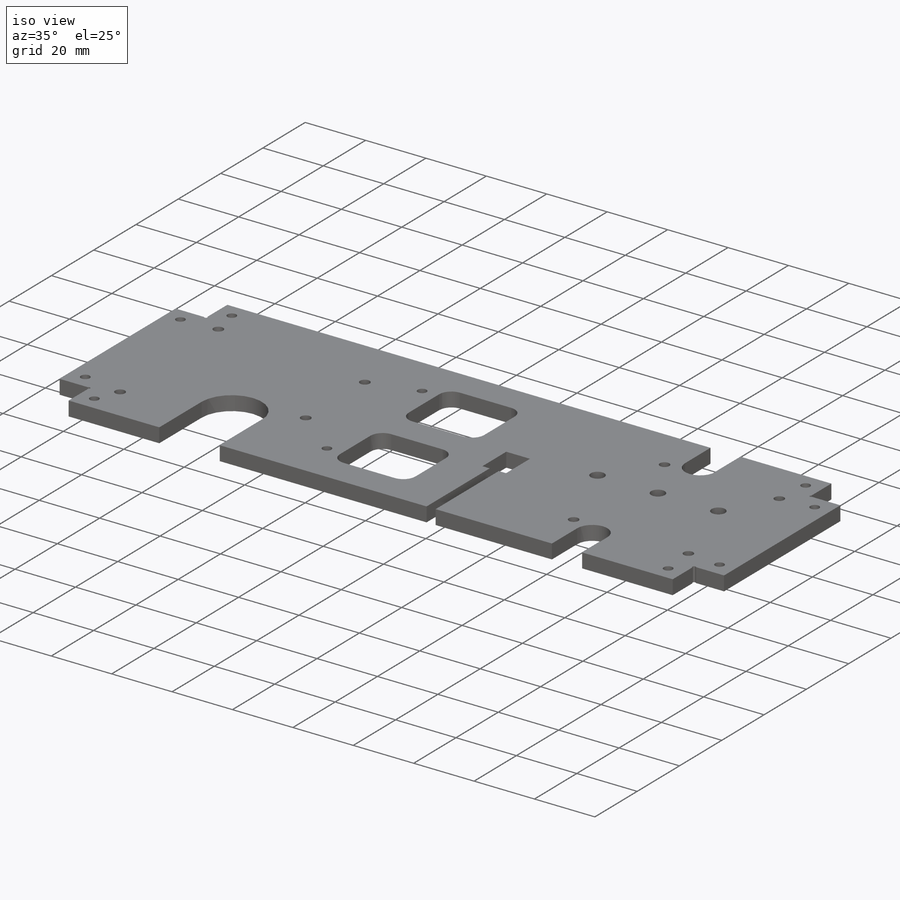
[diagram: iso view]
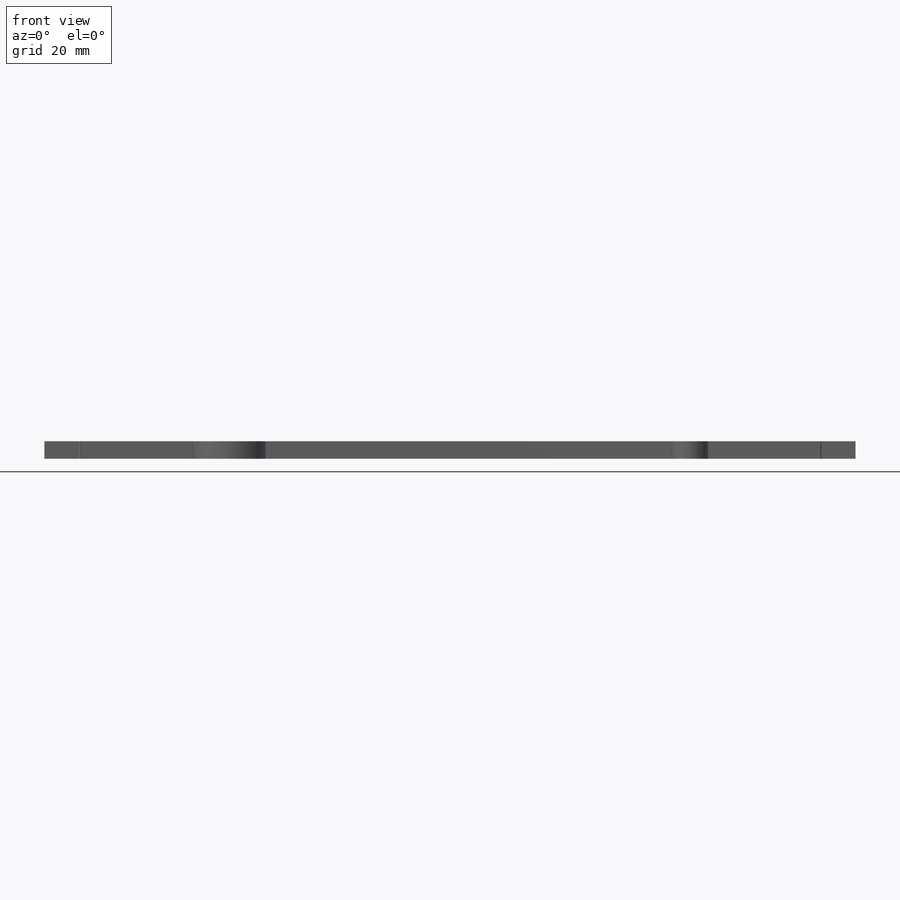
[diagram: front view]
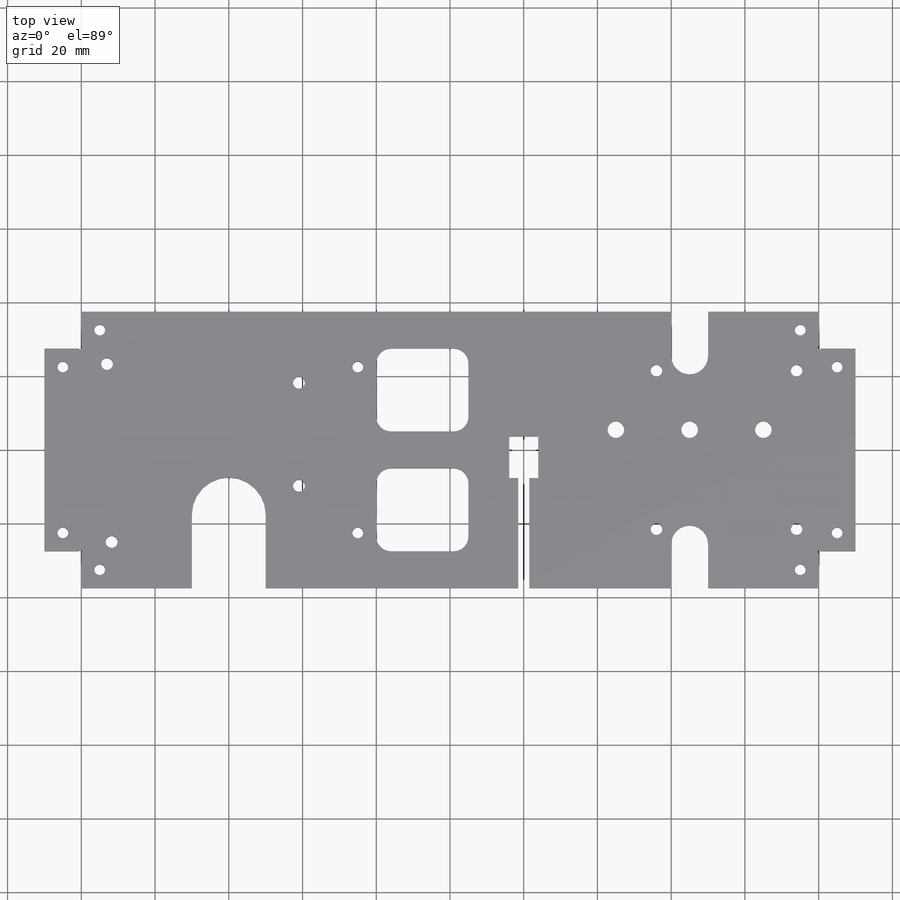
[diagram: top view]
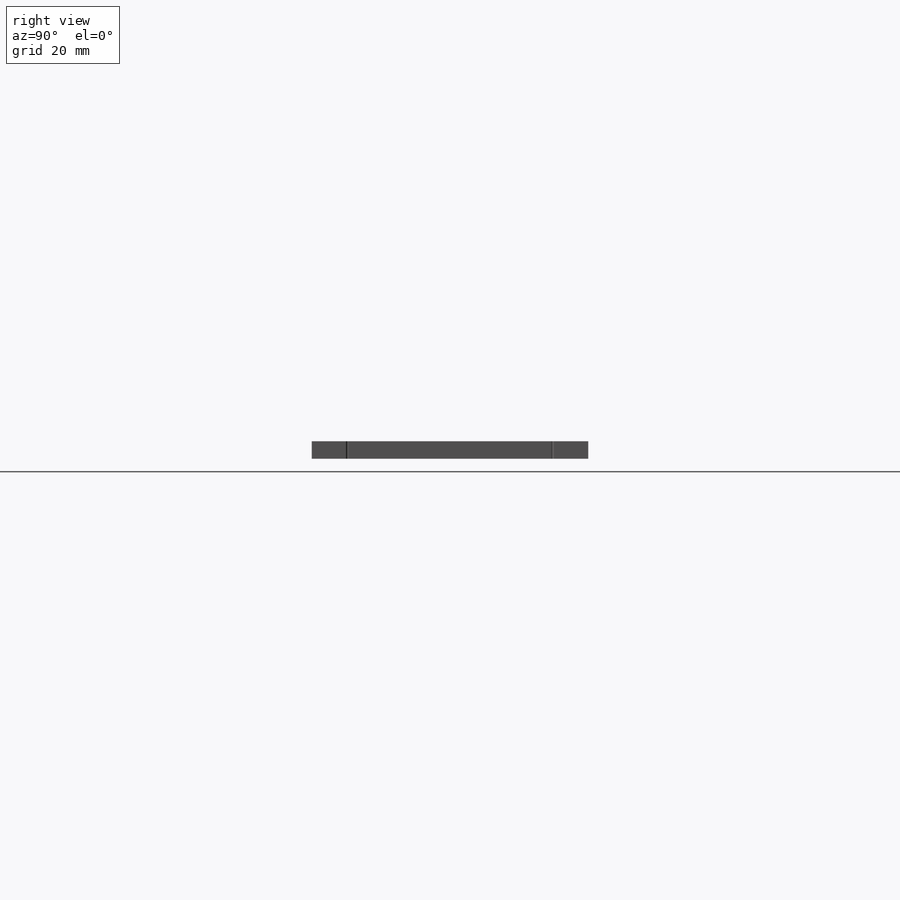
[diagram: right view]
SOLIDWORKS PART (.sldprt)
format: sldprt  version: not decoded by parser v0  size: 347,136 bytes
history: native  units: mm
features: sketch x3, cut_extrude x2, material x1, extrude x1, fillet x1 (+16 scaffold rows collapsed)
feature tree (24):
  scaffold x16  (default folders/planes/origin — collapsed)
  material  "Material <not specified>"
  sketch  "Sketch1"  dims[D4=2.9mm D1=37.5mm D2=110.0mm D3=10.0mm D5=32.5mm D6=22.5mm D7=95.0mm D8=105.0mm]
  extrude  "Boss-Extrude1"  Depth=4.7625mm
  sketch  "Sketch2"  dims[D10=3.2mm D17=4.5mm D25=3.125mm D1=7.85mm D2=11.3mm D3=20.0mm D4=85.0mm D5=3.0mm D6=53.34mm D7=10.0mm D8=15.24mm D9=50.8mm D11=2.54mm D12=13.97mm D13=7.62mm D14=27.94mm D15=50.8mm D16=43.0mm D18=20.0mm D19=65.0mm D20=2.0mm D21=10.0mm D22=12.0mm D23=10.0mm D24=3.0mm D26=38.0mm D27=43.0mm D28=75.0mm D29=5.0mm D30=10.0mm D31=25.0mm D32=20.0mm D33=20.0mm D34=60.0mm]
  cut_extrude  "Cut-Extrude1"  [1 undecoded]
  sketch  "Sketch3"  dims[D2=1.0mm D1=0.25mm]
  cut_extrude  "Cut-Extrude2"  [1 undecoded]
  fillet  "Fillet1"  Radius=4mm
decode coverage: 5 of 7 modeling features carry decoded parameters
note: 2 parameter values undecoded
note: suppression state not decoded; provenance and decode notes live in map.json
